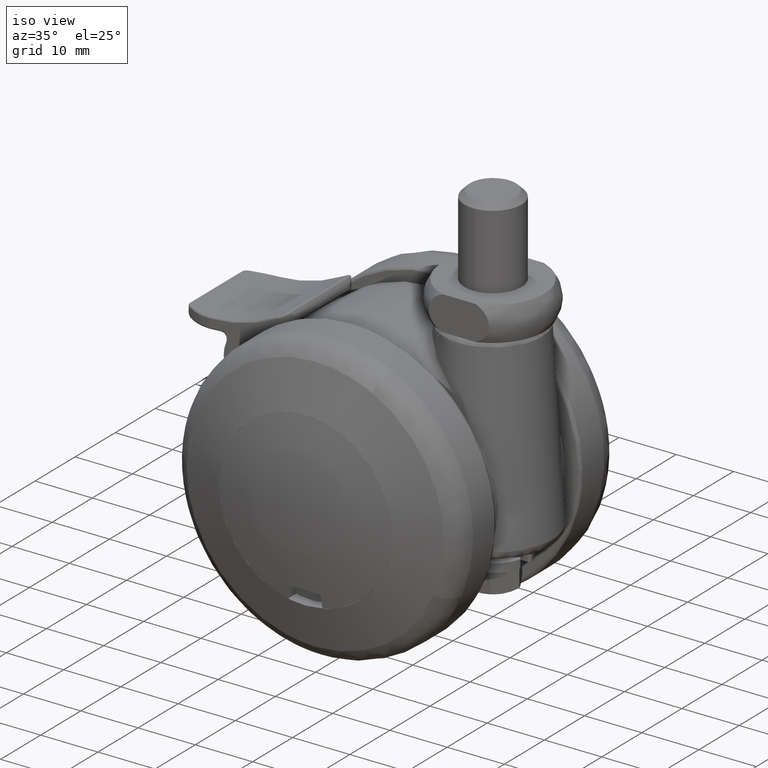
[diagram: clean part render]
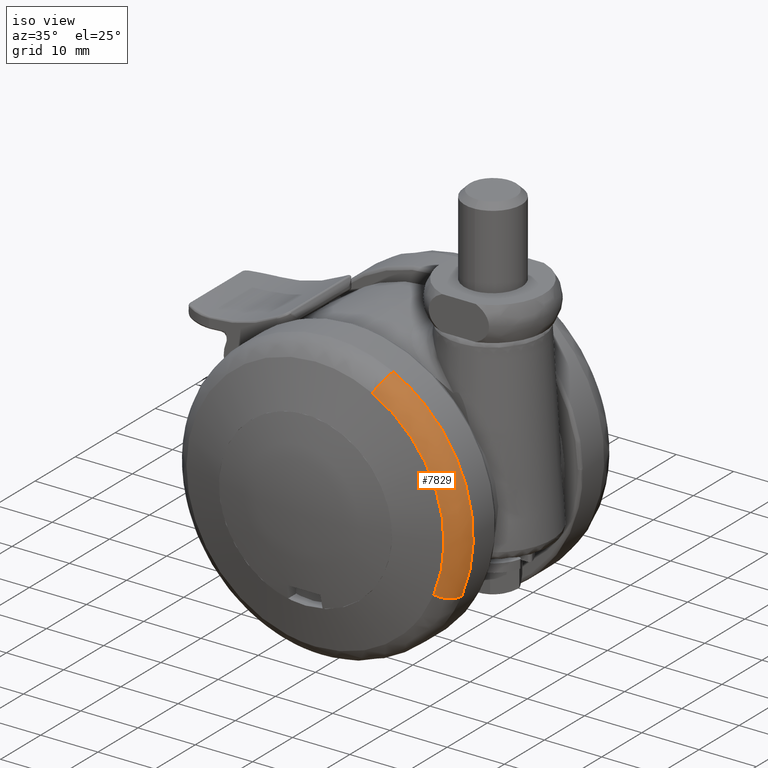
[diagram: same view with one face highlighted and labeled with its STEP entity id]
A machine part, iso view. The second image highlights one B-rep face of the part: STEP entity #7829.
In plain terms, the highlighted face is a freeform B-spline surface patch.
Its self-contained STEP definition (entity closure, byte-faithful):
#7408=CARTESIAN_POINT('',(11.084080773140270,-16.344551000115061,22.408550899478129));
#7409=VERTEX_POINT('',#7408);
#7423=CARTESIAN_POINT('',(23.005796184146732,-16.344551000115011,-9.784341670930125));
#7424=VERTEX_POINT('',#7423);
#7425=CARTESIAN_POINT('',(23.005796184146718,-16.344551000115011,-9.784341670930123));
#7426=CARTESIAN_POINT('',(25.0,-16.344551000000148,-5.095395998328086));
#7427=CARTESIAN_POINT('',(25.0,-16.344551000000148,0.0));
#7428=CARTESIAN_POINT('',(25.000000000000004,-16.344551000000152,15.525233301881880));
#7429=CARTESIAN_POINT('',(11.084080773140265,-16.344551000115064,22.408550899478129));
#7437=(BOUNDED_CURVE()B_SPLINE_CURVE(2,(#7425,#7426,#7427,#7428,#7429),.UNSPECIFIED.,.F.,.U.)B_SPLINE_CURVE_WITH_KNOTS((3,2,3),(0.183550134663008,0.250000000000000,0.424637790836528),.UNSPECIFIED.)CURVE()GEOMETRIC_REPRESENTATION_ITEM()RATIONAL_B_SPLINE_CURVE((0.885683713610782,0.922149140206912,1.0,0.795399101261675,0.876646594193984))REPRESENTATION_ITEM(''));
#7438=EDGE_CURVE('',#7424,#7409,#7437,.T.);
#7709=CARTESIAN_POINT('',(9.975672701062146,-20.052650238824459,20.167695819967630));
#7710=VERTEX_POINT('',#7709);
#7726=CARTESIAN_POINT('',(11.084080773140265,-16.344551000115061,22.408550899478126));
#7727=CARTESIAN_POINT('',(11.084080773071552,-19.041350439869706,22.408550899339247));
#7728=CARTESIAN_POINT('',(9.975672701062148,-20.052650238824455,20.167695819967633));
#7736=(BOUNDED_CURVE()B_SPLINE_CURVE(2,(#7726,#7727,#7728),.UNSPECIFIED.,.F.,.U.)B_SPLINE_CURVE_WITH_KNOTS((3,3),(-1.660962679211862,-0.332907182262001),.UNSPECIFIED.)CURVE()GEOMETRIC_REPRESENTATION_ITEM()RATIONAL_B_SPLINE_CURVE((0.881286030645904,0.731300247433595,0.882677082904920))REPRESENTATION_ITEM(''));
#7737=EDGE_CURVE('',#7409,#7710,#7736,.T.);
#7744=CARTESIAN_POINT('',(20.705216575638211,-20.052650239191589,-8.805907508061402));
#7745=VERTEX_POINT('',#7744);
#7746=CARTESIAN_POINT('',(23.005796184146728,-16.344551000115004,-9.784341670930125));
#7747=CARTESIAN_POINT('',(23.005796184004222,-19.041350441293712,-9.784341670869441));
#7748=CARTESIAN_POINT('',(20.705216575638207,-20.052650239191596,-8.805907508061402));
#7756=(BOUNDED_CURVE()B_SPLINE_CURVE(2,(#7746,#7747,#7748),.UNSPECIFIED.,.F.,.U.)B_SPLINE_CURVE_WITH_KNOTS((3,3),(-1.660962679211895,-0.332907181680075),.UNSPECIFIED.)CURVE()GEOMETRIC_REPRESENTATION_ITEM()RATIONAL_B_SPLINE_CURVE((0.901566036671140,0.748128805755437,0.902989099726661))REPRESENTATION_ITEM(''));
#7757=EDGE_CURVE('',#7424,#7745,#7756,.T.);
#7792=CARTESIAN_POINT('',(23.000148017180042,-16.123046036006446,-9.781939511275407));
#7793=CARTESIAN_POINT('',(32.237756243554308,-16.123046036006453,11.938329386975596));
#7794=CARTESIAN_POINT('',(11.081359513750742,-16.123046036006450,22.403049362563308));
#7795=CARTESIAN_POINT('',(23.154641985636022,-19.150125951155047,-9.847645638608345));
#7796=CARTESIAN_POINT('',(32.454300019379694,-19.150125951155044,12.018520170197979));
#7797=CARTESIAN_POINT('',(11.155793956776414,-19.150125951155051,22.553532568104075));
#7798=CARTESIAN_POINT('',(20.514454146454806,-20.129907270533643,-8.724776441332546));
#7799=CARTESIAN_POINT('',(28.753726791192452,-20.129907270533639,10.648118899558801));
#7800=CARTESIAN_POINT('',(9.883764289491394,-20.129907270533643,19.981885705508457));
#7808=(BOUNDED_SURFACE()B_SPLINE_SURFACE(2,2,((#7792,#7795,#7798),(#7793,#7796,#7799),(#7794,#7797,#7800)),.UNSPECIFIED.,.F.,.F.,.U.)B_SPLINE_SURFACE_WITH_KNOTS((3,3),(3,3),(0.0,39.743829039994672),(0.0,5.378328550440974),.UNSPECIFIED.)GEOMETRIC_REPRESENTATION_ITEM()RATIONAL_B_SPLINE_SURFACE(((0.917663624678966,0.731960140785885,0.919228841572620),(0.659637269971533,0.526149425575076,0.660762383107629),(0.897021516302371,0.715495283569020,0.898551524895421)))REPRESENTATION_ITEM('')SURFACE());
#7809=CARTESIAN_POINT('',(20.705216575638211,-20.052650239191589,-8.805907508061402));
#7810=CARTESIAN_POINT('',(22.500000010548298,-20.052650239280947,-4.585856400655935));
#7811=CARTESIAN_POINT('',(22.500000010548298,-20.052650239280950,0.0));
#7812=CARTESIAN_POINT('',(22.500000010548295,-20.052650239280947,13.972709978153336));
#7813=CARTESIAN_POINT('',(9.975672701062145,-20.052650238824452,20.167695819967630));
#7821=(BOUNDED_CURVE()B_SPLINE_CURVE(2,(#7809,#7810,#7811,#7812,#7813),.UNSPECIFIED.,.F.,.U.)B_SPLINE_CURVE_WITH_KNOTS((3,2,3),(0.183550134662864,0.250000000000000,0.424637790835624),.UNSPECIFIED.)CURVE()GEOMETRIC_REPRESENTATION_ITEM()RATIONAL_B_SPLINE_CURVE((0.885683713610624,0.922149140206744,1.0,0.795399101262735,0.876646594193143))REPRESENTATION_ITEM(''));
#7822=EDGE_CURVE('',#7745,#7710,#7821,.T.);
#7823=ORIENTED_EDGE('',*,*,#7822,.F.);
#7824=ORIENTED_EDGE('',*,*,#7757,.F.);
#7825=ORIENTED_EDGE('',*,*,#7438,.T.);
#7826=ORIENTED_EDGE('',*,*,#7737,.T.);
#7827=EDGE_LOOP('',(#7823,#7824,#7825,#7826));
#7828=FACE_OUTER_BOUND('',#7827,.T.);
#7829=ADVANCED_FACE('',(#7828),#7808,.T.);